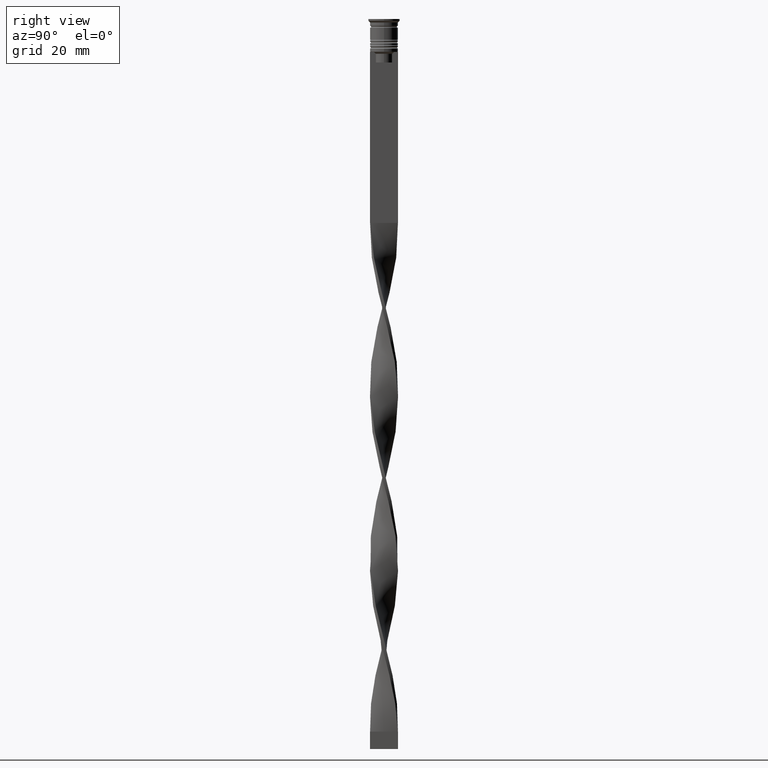
[diagram: clean part render]
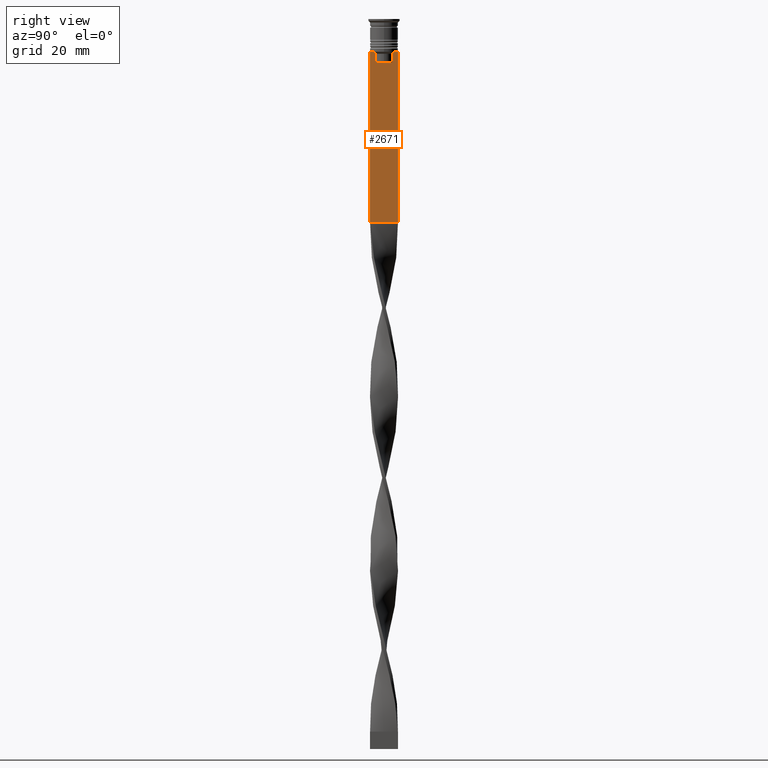
[diagram: same view with one face highlighted and labeled with its STEP entity id]
A machine part, right view. The second image highlights one B-rep face of the part: STEP entity #2671.
In plain terms, the highlighted planar face has unit normal (-1, 0, 0).
Its self-contained STEP definition (entity closure, byte-faithful):
#8 = VECTOR ( 'NONE', #2979, 1000.000000000000000 ) ;
#15 = VECTOR ( 'NONE', #3454, 1000.000000000000000 ) ;
#29 = ORIENTED_EDGE ( 'NONE', *, *, #575, .T. ) ;
#43 = CARTESIAN_POINT ( 'NONE',  ( 0.5000000000000000000, -4.000000000000000000, -1.437742251701450202 ) ) ;
#73 = CARTESIAN_POINT ( 'NONE',  ( 0.5000000000000000000, -2.856571371417138572, -9.500000000000000000 ) ) ;
#76 = VERTEX_POINT ( 'NONE', #1958 ) ;
#80 = DIRECTION ( 'NONE',  ( 0.000000000000000000, 0.000000000000000000, 1.000000000000000000 ) ) ;
#177 = DIRECTION ( 'NONE',  ( -0.000000000000000000, -0.000000000000000000, 1.000000000000000000 ) ) ;
#305 = CARTESIAN_POINT ( 'NONE',  ( 0.5000000000000000000, 2.399999999999996803, -12.50000000000000000 ) ) ;
#322 = EDGE_CURVE ( 'NONE', #595, #3793, #2969, .T. ) ;
#329 = VECTOR ( 'NONE', #2429, 1000.000000000000000 ) ;
#363 = DIRECTION ( 'NONE',  ( 0.000000000000000000, -1.000000000000000000, 0.000000000000000000 ) ) ;
#386 = DIRECTION ( 'NONE',  ( 0.000000000000000000, -1.000000000000000000, 0.000000000000000000 ) ) ;
#406 = CARTESIAN_POINT ( 'NONE',  ( 0.5000000000000000000, -4.000000000000000000, -58.50000000000000000 ) ) ;
#466 = EDGE_CURVE ( 'NONE', #822, #2412, #2837, .T. ) ;
#569 = EDGE_CURVE ( 'NONE', #1208, #1899, #2909, .T. ) ;
#575 = EDGE_CURVE ( 'NONE', #76, #3366, #2419, .T. ) ;
#595 = VERTEX_POINT ( 'NONE', #406 ) ;
#659 = VECTOR ( 'NONE', #1196, 1000.000000000000000 ) ;
#822 = VERTEX_POINT ( 'NONE', #73 ) ;
#933 = CARTESIAN_POINT ( 'NONE',  ( 0.5000000000000000000, 4.000000000000000000, -58.50000000000000000 ) ) ;
#961 = VECTOR ( 'NONE', #177, 1000.000000000000000 ) ;
#966 = VECTOR ( 'NONE', #3642, 1000.000000000000000 ) ;
#992 = LINE ( 'NONE', #1032, #3323 ) ;
#1032 = CARTESIAN_POINT ( 'NONE',  ( 0.5000000000000000000, 4.000000000000000000, -1.437742251701450202 ) ) ;
#1053 = CARTESIAN_POINT ( 'NONE',  ( 0.5000000000000000000, 2.347338918861097135, -10.00000000000000000 ) ) ;
#1087 = ORIENTED_EDGE ( 'NONE', *, *, #322, .T. ) ;
#1106 = ORIENTED_EDGE ( 'NONE', *, *, #3656, .T. ) ;
#1111 = CARTESIAN_POINT ( 'NONE',  ( 0.5000000000000000000, -2.347338918861097135, -10.00000000000000000 ) ) ;
#1114 = CARTESIAN_POINT ( 'NONE',  ( 0.5000000000000000000, 2.347338918861097135, -10.00000000000000000 ) ) ;
#1130 = CARTESIAN_POINT ( 'NONE',  ( 0.5000000000000000000, -2.687095498514037839, -9.666937905752043037 ) ) ;
#1175 = EDGE_CURVE ( 'NONE', #1899, #822, #2992, .T. ) ;
#1179 = CARTESIAN_POINT ( 'NONE',  ( 0.5000000000000000000, -4.000000000000000000, -1.437742251701450202 ) ) ;
#1196 = DIRECTION ( 'NONE',  ( 0.000000000000000000, -1.000000000000000000, 0.000000000000000000 ) ) ;
#1208 = VERTEX_POINT ( 'NONE', #2121 ) ;
#1232 = VECTOR ( 'NONE', #2218, 1000.000000000000000 ) ;
#1243 = LINE ( 'NONE', #1179, #1232 ) ;
#1286 = AXIS2_PLACEMENT_3D ( 'NONE', #43, #3643, #80 ) ;
#1316 = DIRECTION ( 'NONE',  ( 0.000000000000000000, 0.000000000000000000, -1.000000000000000000 ) ) ;
#1396 = CARTESIAN_POINT ( 'NONE',  ( 0.5000000000000000000, 2.517407211010872281, -9.833663366238582171 ) ) ;
#1419 = CARTESIAN_POINT ( 'NONE',  ( 0.5000000000000000000, -2.347338918861097135, 0.000000000000000000 ) ) ;
#1464 = CARTESIAN_POINT ( 'NONE',  ( 0.5000000000000000000, -3.867815921162741422, -9.500000000000000000 ) ) ;
#1498 = CARTESIAN_POINT ( 'NONE',  ( 0.5000000000000000000, -4.000000000000000000, -58.50000000000000000 ) ) ;
#1549 = ORIENTED_EDGE ( 'NONE', *, *, #3687, .T. ) ;
#1560 = CARTESIAN_POINT ( 'NONE',  ( 0.5000000000000000000, -4.000000000000000000, -9.500000000000000000 ) ) ;
#1586 = EDGE_LOOP ( 'NONE', ( #3298, #29, #3202, #3809, #2134, #3136, #3161, #3854, #1106, #1087, #3112, #1549 ) ) ;
#1614 = EDGE_CURVE ( 'NONE', #2461, #76, #3938, .T. ) ;
#1658 = VERTEX_POINT ( 'NONE', #3678 ) ;
#1688 = EDGE_CURVE ( 'NONE', #1710, #3793, #992, .T. ) ;
#1710 = VERTEX_POINT ( 'NONE', #2803 ) ;
#1751 = CARTESIAN_POINT ( 'NONE',  ( 0.5000000000000000000, -4.000000000000000000, -9.500000000000000000 ) ) ;
#1784 = EDGE_CURVE ( 'NONE', #2412, #2835, #3163, .T. ) ;
#1886 = CARTESIAN_POINT ( 'NONE',  ( 0.5000000000000000000, -4.000000000000000000, -9.500000000000000000 ) ) ;
#1899 = VERTEX_POINT ( 'NONE', #1111 ) ;
#1907 = CARTESIAN_POINT ( 'NONE',  ( 0.5000000000000000000, -4.000000000000000000, -9.500000000000000000 ) ) ;
#1958 = CARTESIAN_POINT ( 'NONE',  ( 0.5000000000000000000, 2.856571371417138572, -9.500000000000000000 ) ) ;
#2011 = CARTESIAN_POINT ( 'NONE',  ( 0.5000000000000000000, 2.856571371417138572, -9.500000000000000000 ) ) ;
#2121 = CARTESIAN_POINT ( 'NONE',  ( 0.5000000000000000000, -2.347338918861097135, -12.50000000000000000 ) ) ;
#2134 = ORIENTED_EDGE ( 'NONE', *, *, #569, .T. ) ;
#2218 = DIRECTION ( 'NONE',  ( 0.000000000000000000, 0.000000000000000000, -1.000000000000000000 ) ) ;
#2343 = CARTESIAN_POINT ( 'NONE',  ( 0.5000000000000000000, -2.856571371417138572, -9.500000000000000000 ) ) ;
#2412 = VERTEX_POINT ( 'NONE', #1464 ) ;
#2419 = B_SPLINE_CURVE_WITH_KNOTS ( 'NONE', 3,
 ( #2011, #2627, #1396, #1114 ),
 .UNSPECIFIED., .F., .F.,
 ( 4, 4 ),
 ( 0.004956812174141191595, 0.005670477137898149653 ),
 .UNSPECIFIED. ) ;
#2429 = DIRECTION ( 'NONE',  ( 0.000000000000000000, 1.000000000000000000, 0.000000000000000000 ) ) ;
#2437 = VECTOR ( 'NONE', #363, 1000.000000000000000 ) ;
#2461 = VERTEX_POINT ( 'NONE', #2697 ) ;
#2464 = EDGE_CURVE ( 'NONE', #3366, #1658, #3850, .T. ) ;
#2627 = CARTESIAN_POINT ( 'NONE',  ( 0.5000000000000000000, 2.687094542495898075, -9.666938847453439010 ) ) ;
#2642 = CARTESIAN_POINT ( 'NONE',  ( 0.5000000000000000000, -2.347338918861097135, -10.00000000000000000 ) ) ;
#2671 = ADVANCED_FACE ( 'NONE', ( #2768 ), #2804, .F. ) ;
#2697 = CARTESIAN_POINT ( 'NONE',  ( 0.5000000000000000000, 3.867815921162741422, -9.500000000000000000 ) ) ;
#2768 = FACE_OUTER_BOUND ( 'NONE', #1586, .T. ) ;
#2803 = CARTESIAN_POINT ( 'NONE',  ( 0.5000000000000000000, 4.000000000000000000, -9.500000000000000000 ) ) ;
#2804 = PLANE ( 'NONE',  #1286 ) ;
#2835 = VERTEX_POINT ( 'NONE', #1751 ) ;
#2837 = LINE ( 'NONE', #1886, #3120 ) ;
#2909 = LINE ( 'NONE', #1419, #961 ) ;
#2969 = LINE ( 'NONE', #1498, #329 ) ;
#2979 = DIRECTION ( 'NONE',  ( 0.000000000000000000, 0.000000000000000000, -1.000000000000000000 ) ) ;
#2992 = B_SPLINE_CURVE_WITH_KNOTS ( 'NONE', 3,
 ( #2642, #3859, #1130, #2343 ),
 .UNSPECIFIED., .F., .F.,
 ( 4, 4 ),
 ( 0.01178336557230038467, 0.01249758354768160280 ),
 .UNSPECIFIED. ) ;
#3092 = LINE ( 'NONE', #305, #2437 ) ;
#3112 = ORIENTED_EDGE ( 'NONE', *, *, #1688, .F. ) ;
#3120 = VECTOR ( 'NONE', #386, 1000.000000000000000 ) ;
#3136 = ORIENTED_EDGE ( 'NONE', *, *, #1175, .T. ) ;
#3161 = ORIENTED_EDGE ( 'NONE', *, *, #466, .T. ) ;
#3163 = LINE ( 'NONE', #1907, #15 ) ;
#3186 = EDGE_CURVE ( 'NONE', #1658, #1208, #3092, .T. ) ;
#3202 = ORIENTED_EDGE ( 'NONE', *, *, #2464, .T. ) ;
#3298 = ORIENTED_EDGE ( 'NONE', *, *, #1614, .T. ) ;
#3323 = VECTOR ( 'NONE', #1316, 1000.000000000000000 ) ;
#3366 = VERTEX_POINT ( 'NONE', #1053 ) ;
#3454 = DIRECTION ( 'NONE',  ( 0.000000000000000000, -1.000000000000000000, 0.000000000000000000 ) ) ;
#3542 = CARTESIAN_POINT ( 'NONE',  ( 0.5000000000000000000, 2.347338918861097135, 0.000000000000000000 ) ) ;
#3597 = CARTESIAN_POINT ( 'NONE',  ( 0.5000000000000000000, -4.000000000000000000, -9.500000000000000000 ) ) ;
#3642 = DIRECTION ( 'NONE',  ( 0.000000000000000000, -1.000000000000000000, 0.000000000000000000 ) ) ;
#3643 = DIRECTION ( 'NONE',  ( -1.000000000000000000, 0.000000000000000000, 0.000000000000000000 ) ) ;
#3656 = EDGE_CURVE ( 'NONE', #2835, #595, #1243, .T. ) ;
#3678 = CARTESIAN_POINT ( 'NONE',  ( 0.5000000000000000000, 2.347338918861097135, -12.50000000000000000 ) ) ;
#3687 = EDGE_CURVE ( 'NONE', #1710, #2461, #3917, .T. ) ;
#3793 = VERTEX_POINT ( 'NONE', #933 ) ;
#3809 = ORIENTED_EDGE ( 'NONE', *, *, #3186, .T. ) ;
#3850 = LINE ( 'NONE', #3542, #8 ) ;
#3854 = ORIENTED_EDGE ( 'NONE', *, *, #1784, .T. ) ;
#3859 = CARTESIAN_POINT ( 'NONE',  ( 0.5000000000000000000, -2.517408374291112416, -9.833662228483172285 ) ) ;
#3917 = LINE ( 'NONE', #3597, #659 ) ;
#3938 = LINE ( 'NONE', #1560, #966 ) ;